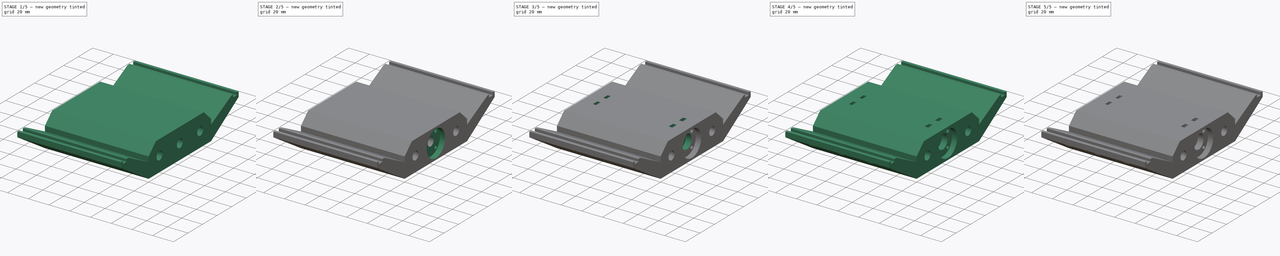
[diagram: build sequence overview — one tinted view per stage of 5, left to right]
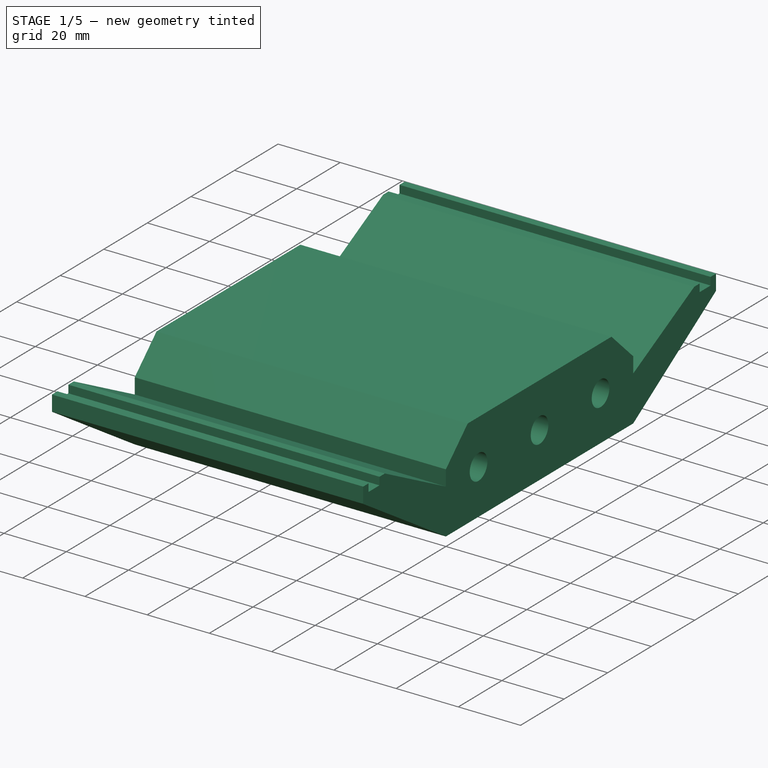
[diagram: stage 1 of 5 — iso view after this stage's code; geometry added in this stage tinted green]
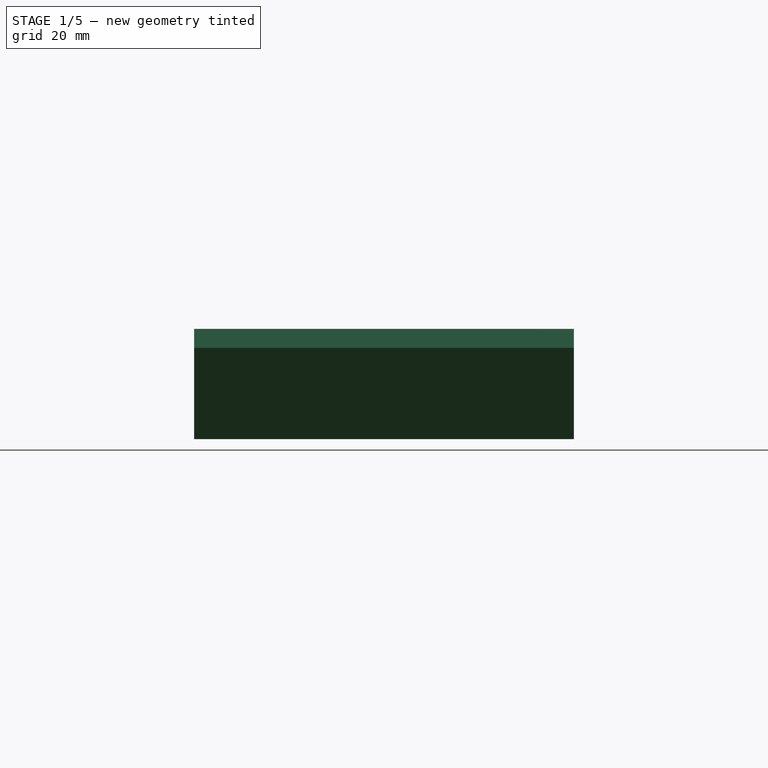
[diagram: stage 1 of 5 — front view after this stage's code; geometry added in this stage tinted green]
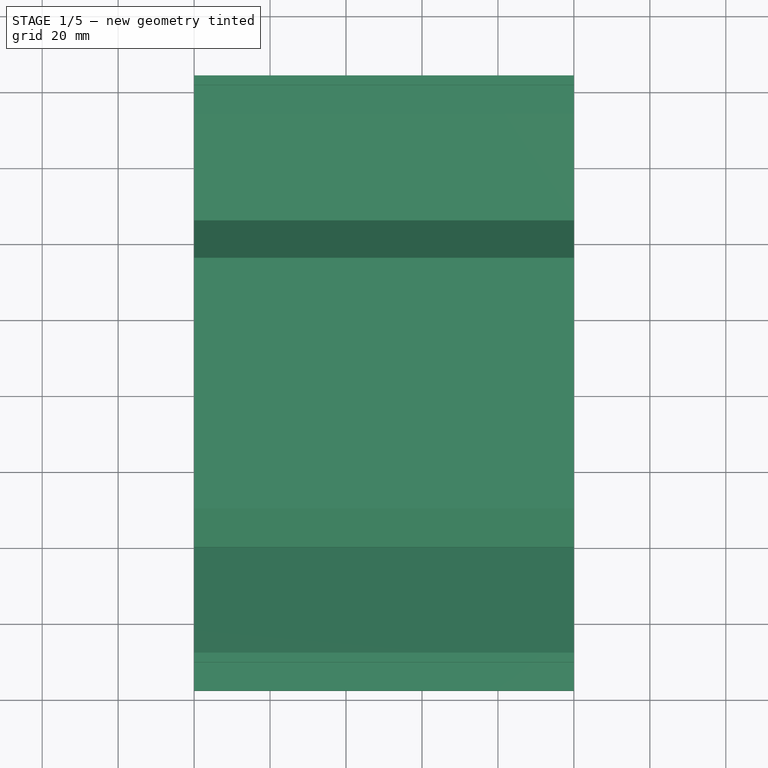
[diagram: stage 1 of 5 — top view after this stage's code; geometry added in this stage tinted green]
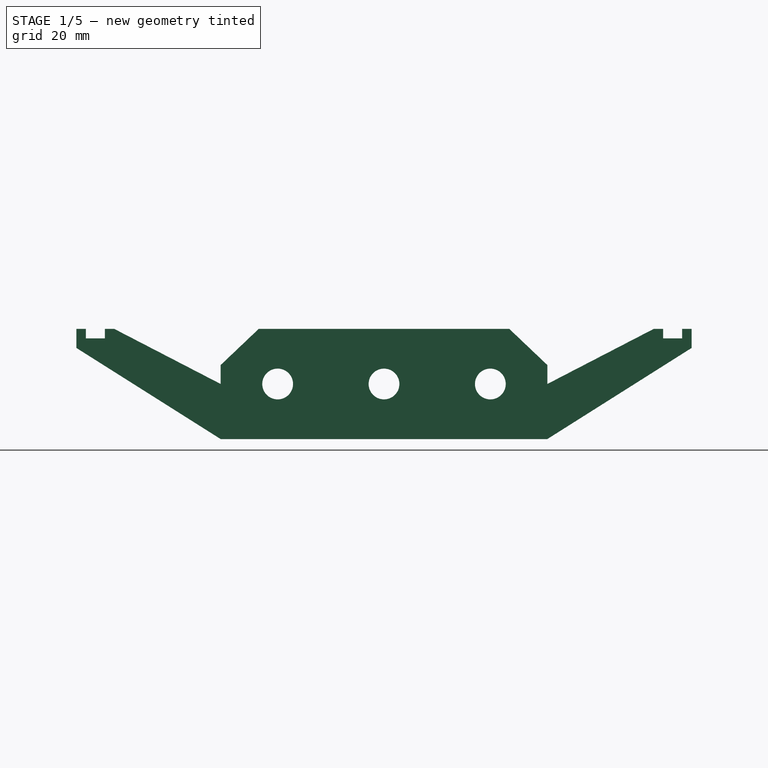
[diagram: stage 1 of 5 — right view after this stage's code; geometry added in this stage tinted green]
FCSTD DOCUMENT  (FreeCAD 0.18R16146 (Git))
Label: x-carriage-base
License: All rights reserved
LicenseURL: http://en.wikipedia.org/wiki/All_rights_reserved
objects: Sketcher::SketchObject×15, PartDesign::Pocket×14, PartDesign::Body×3, PartDesign::FeatureBase×2, PartDesign::Pad×1
note: 50 computed .brp shape members not serialized (recipe doc carries the construction recipe); baked Part::Feature solids carry a one-line shape summary decoded from their .brp

FEATURE [Sketcher::SketchObject] Sketch007
  AttachmentOffset = pos=(0,0,100) rot=(0,0,1;0rad)
  MapMode = 5
  Placement = pos=(100,-2.22e-14,2.22e-14) rot=(0.57735,0.57735,0.57735;2.0944rad)
  Support = -> [YZ_Plane]
  sketch-geometry (1):
    g0: Circle CenterX=-17 CenterY=-5 CenterZ=0 NormalX=0 NormalY=0 NormalZ=1 AngleXU=0 Radius=6.75
  constraints (3):
    c: Diameter(g0) = 13.5
    c: DistanceX(g0,g-1) = 17
    c: DistanceY(g0,g-1) = 5
FEATURE [Sketcher::SketchObject] Sketch006
  MapMode = 5
  Placement = pos=(0,0,0) rot=(0.57735,0.57735,0.57735;2.0944rad)
  Support = -> [YZ_Plane]
  sketch-geometry (1):
    g0: Circle CenterX=-17 CenterY=-5 CenterZ=0 NormalX=0 NormalY=0 NormalZ=1 AngleXU=0 Radius=6.75
  constraints (3):
    c: Diameter(g0) = 13.5
    c: DistanceX(g0,g-1) = 17
    c: DistanceY(g0,g-1) = 5
FEATURE [Sketcher::SketchObject] Sketch004
  AttachmentOffset = pos=(0,0,100) rot=(0,0,1;0rad)
  MapMode = 5
  Placement = pos=(100,-2.22e-14,2.22e-14) rot=(0.57735,0.57735,0.57735;2.0944rad)
  Support = -> [YZ_Plane]
  sketch-geometry (1):
    g0: Circle CenterX=-17 CenterY=-5 CenterZ=0 NormalX=0 NormalY=0 NormalZ=1 AngleXU=0 Radius=12.75
  constraints (3):
    c: DistanceX(g0,g-1) = 17
    c: DistanceY(g0,g-1) = 5
    c: Diameter(g0) = 25.5
FEATURE [Sketcher::SketchObject] Sketch009
  AttachmentOffset = pos=(0,0,88.25) rot=(0,0,1;0rad)
  MapMode = 5
  Placement = pos=(88.25,-1.96e-14,1.96e-14) rot=(0.57735,0.57735,0.57735;2.0944rad)
  Support = -> [YZ_Plane]
  sketch-geometry (33):
    g0: LineSegment StartX=-21.04 StartY=0.321088 StartZ=0 EndX=-21.04 EndY=3.82109 EndZ=0
    g1: LineSegment StartX=-27.1021 StartY=3.82109 StartZ=0 EndX=-27.1021 EndY=0.321088 EndZ=0
    g2: LineSegment StartX=-27.1021 StartY=0.321088 StartZ=0 EndX=-24.0711 EndY=-1.42891 EndZ=0
    g3: LineSegment StartX=-24.0711 StartY=-1.42891 StartZ=0 EndX=-21.04 EndY=0.321088 EndZ=0
    g4: Circle [constr] CenterX=-24.0711 CenterY=2.07109 CenterZ=0 NormalX=0 NormalY=0 NormalZ=1 AngleXU=0 Radius=3.5
    g5: LineSegment StartX=-6.89786 StartY=0.321088 StartZ=0 EndX=-6.89786 EndY=3.82109 EndZ=0
    g6: LineSegment StartX=-12.96 StartY=3.82109 StartZ=0 EndX=-12.96 EndY=0.321088 EndZ=0
    g7: LineSegment StartX=-12.96 StartY=0.321088 StartZ=0 EndX=-9.92895 EndY=-1.42891 EndZ=0
    g8: LineSegment StartX=-9.92895 StartY=-1.42891 StartZ=0 EndX=-6.89786 EndY=0.321088 EndZ=0
    g9: Circle [constr] CenterX=-9.92895 CenterY=2.07109 CenterZ=0 NormalX=0 NormalY=0 NormalZ=1 AngleXU=0 Radius=3.5
    g10: LineSegment StartX=-21.04 StartY=-13.8211 StartZ=0 EndX=-21.04 EndY=-10.3211 EndZ=0
    g11: LineSegment StartX=-21.04 StartY=-10.3211 StartZ=0 EndX=-24.0711 EndY=-8.57108 EndZ=0
    g12: LineSegment StartX=-24.0711 StartY=-8.57108 StartZ=0 EndX=-27.1021 EndY=-10.3211 EndZ=0
    g13: LineSegment StartX=-27.1021 StartY=-10.3211 StartZ=0 EndX=-27.1021 EndY=-13.8211 EndZ=0
    g14: Circle [constr] CenterX=-24.0711 CenterY=-12.0711 CenterZ=0 NormalX=0 NormalY=0 NormalZ=1 AngleXU=0 Radius=3.5
    g15: LineSegment StartX=-6.89786 StartY=-13.8211 StartZ=0 EndX=-6.89786 EndY=-10.3211 EndZ=0
    g16: LineSegment StartX=-6.89786 StartY=-10.3211 StartZ=0 EndX=-9.92895 EndY=-8.57108 EndZ=0
    g17: LineSegment StartX=-9.92895 StartY=-8.57108 StartZ=0 EndX=-12.96 EndY=-10.3211 EndZ=0
    g18: LineSegment StartX=-12.96 StartY=-10.3211 StartZ=0 EndX=-12.96 EndY=-13.8211 EndZ=0
    g19: Circle [constr] CenterX=-9.92895 CenterY=-12.0711 CenterZ=0 NormalX=0 NormalY=0 NormalZ=1 AngleXU=0 Radius=3.5
    g20: GeomPoint X=-17 Y=-5 Z=0
    g21: LineSegment StartX=-27.1021 StartY=3.82109 StartZ=0 EndX=-27.1021 EndY=9.82109 EndZ=0
    g22: LineSegment StartX=-27.1021 StartY=9.82109 StartZ=0 EndX=-21.04 EndY=9.82109 EndZ=0
    g23: LineSegment StartX=-21.04 StartY=9.82109 StartZ=0 EndX=-21.04 EndY=3.82109 EndZ=0
    g24: LineSegment StartX=-12.96 StartY=3.82109 StartZ=0 EndX=-12.96 EndY=9.82109 EndZ=0
    g25: LineSegment StartX=-6.89786 StartY=3.82109 StartZ=0 EndX=-6.89786 EndY=9.82109 EndZ=0
    g26: LineSegment StartX=-12.96 StartY=9.82109 StartZ=0 EndX=-6.89786 EndY=9.82109 EndZ=0
    g27: LineSegment StartX=-27.1021 StartY=-13.8211 StartZ=0 EndX=-27.1021 EndY=-19.8211 EndZ=0
    g28: LineSegment StartX=-27.1021 StartY=-19.8211 StartZ=0 EndX=-21.04 EndY=-19.8211 EndZ=0
    g29: LineSegment StartX=-21.04 StartY=-19.8211 StartZ=0 EndX=-21.04 EndY=-13.8211 EndZ=0
    g30: LineSegment StartX=-12.96 StartY=-13.8211 StartZ=0 EndX=-12.96 EndY=-19.8211 EndZ=0
    g31: LineSegment StartX=-6.89786 StartY=-13.8211 StartZ=0 EndX=-6.89786 EndY=-19.8211 EndZ=0
    g32: LineSegment StartX=-12.96 StartY=-19.8211 StartZ=0 EndX=-6.89786 EndY=-19.8211 EndZ=0
  constraints (98):
    c: Coincident(g1,g2)
    c: Coincident(g2,g3)
    c: Coincident(g3,g0)
    c: Equal(g0,g1)
    c: Equal(g0,g2)
    c: Equal(g0,g3)
    c: PointOnObject(g0,g4)
    c: PointOnObject(g1,g4)
    c: PointOnObject(g1,g4)
    c: PointOnObject(g2,g4)
    c: PointOnObject(g3,g4)
    c: Coincident(g6,g7)
    c: Coincident(g7,g8)
    c: Coincident(g8,g5)
    c: Equal(g5,g6)
    c: Equal(g5,g7)
    c: Equal(g5,g8)
    c: PointOnObject(g5,g9)
    c: PointOnObject(g6,g9)
    c: PointOnObject(g6,g9)
    c: PointOnObject(g7,g9)
    c: PointOnObject(g8,g9)
    c: Coincident(g10,g11)
    c: Coincident(g11,g12)
    c: Coincident(g12,g13)
    c: Equal(g10,g11)
    c: Equal(g10,g12)
    c: Equal(g10,g13)
    c: PointOnObject(g10,g14)
    c: PointOnObject(g11,g14)
    c: PointOnObject(g12,g14)
    c: PointOnObject(g13,g14)
    c: PointOnObject(g10,g14)
    c: Coincident(g15,g16)
    c: Coincident(g16,g17)
    c: Coincident(g17,g18)
    c: Equal(g15,g16)
    c: Equal(g15,g17)
    c: Equal(g15,g18)
    c: PointOnObject(g15,g19)
    c: PointOnObject(g16,g19)
    c: PointOnObject(g17,g19)
    c: PointOnObject(g18,g19)
    c: PointOnObject(g15,g19)
    c: DistanceY(g9,g4) = 0
    c: DistanceY(g19,g14) = 0
    c: DistanceX(g14,g4) = 0
    c: DistanceX(g9,g19) = 0
    c: Distance(g4,g19) = 20
    c: Vertical(g1)
    c: Vertical(g6)
    c: Vertical(g18)
    c: DistanceX(g20,g-1) = 17
    c: DistanceY(g20,g-1) = 5
    c: Distance(g9,g20) = 10
    c: DistanceY(g1,g1) = 3.5
    c: Equal(g6,g1)
    c: Equal(g13,g1)
    c: Equal(g18,g1)
    c: Distance(g20,g14) = 10
    c: DistanceX(g4,g9) = 14.1421
    c: Vertical(g13)
    c: Vertical(g21)
    c: Coincident(g22,g21)
    c: Horizontal(g22)
    c: Coincident(g23,g22)
    c: Coincident(g23,g0)
    c: Vertical(g23)
    c: Vertical(g24)
    c: Coincident(g25,g5)
    c: Vertical(g25)
    c: Coincident(g26,g24)
    c: Coincident(g26,g25)
    c: Horizontal(g26)
    c: DistanceY(g24,g24) = 6
    c: DistanceY(g24,g22) = 0
    c: Vertical(g0)
    c: Coincident(g1,g21)
    c: Coincident(g6,g24)
    c: Vertical(g5)
    c: Coincident(g27,g13)
    c: Vertical(g27)
    c: Coincident(g28,g27)
    c: Horizontal(g28)
    c: Coincident(g29,g28)
    c: Coincident(g29,g10)
    c: Vertical(g29)
    c: Coincident(g30,g18)
    c: Vertical(g30)
    c: Coincident(g31,g15)
    c: Vertical(g31)
    c: Coincident(g32,g30)
    c: Horizontal(g32)
    c: Coincident(g31,g32)
    c: DistanceY(g30,g30) = 6
    c: DistanceY(g29,g29) = 6
    c: Vertical(g15)
    c: Vertical(g10)
FEATURE [Sketcher::SketchObject] Sketch019
  MapMode = 5
  Support = -> [XY_Plane]
  sketch-geometry (6):
    g0: Circle CenterX=22 CenterY=59 CenterZ=0 NormalX=0 NormalY=0 NormalZ=1 AngleXU=0 Radius=3
    g1: Circle CenterX=78 CenterY=59 CenterZ=0 NormalX=0 NormalY=0 NormalZ=1 AngleXU=0 Radius=3
    g2: Circle CenterX=22 CenterY=-93 CenterZ=0 NormalX=0 NormalY=0 NormalZ=1 AngleXU=0 Radius=3
    g3: Circle CenterX=50 CenterY=-93 CenterZ=0 NormalX=0 NormalY=0 NormalZ=1 AngleXU=0 Radius=3
    g4: Circle CenterX=78 CenterY=-93 CenterZ=0 NormalX=0 NormalY=0 NormalZ=1 AngleXU=0 Radius=3
    g5: Circle CenterX=50 CenterY=59 CenterZ=0 NormalX=0 NormalY=0 NormalZ=1 AngleXU=0 Radius=3
  constraints (18):
    c: DistanceY(g0,g1) = 0
    c: DistanceX(g0,g1) = 56
    c: Diameter(g0) = 6
    c: Equal(g1,g0)
    c: DistanceX(g-1,g0) = 22
    c: DistanceY(g-1,g0) = 59
    c: DistanceY(g4,g3) = 0
    c: DistanceY(g3,g2) = 0
    c: DistanceX(g2,g3) = 28
    c: DistanceX(g3,g4) = 28
    c: Diameter(g2) = 6
    c: Equal(g3,g2)
    c: Equal(g4,g2)
    c: DistanceX(g-1,g2) = 22
    c: DistanceY(g2,g-1) = 93
    c: Equal(g0,g5)
    c: DistanceY(g0,g5) = 0
    c: DistanceX(g0,g5) = 28
FEATURE [Sketcher::SketchObject] Sketch003
  AttachmentOffset = pos=(0,0,10.5) rot=(0,0,1;0rad)
  MapMode = 5
  Placement = pos=(10.5,-2.3e-15,2.3e-15) rot=(0.57735,0.57735,0.57735;2.0944rad)
  Support = -> [YZ_Plane]
  sketch-geometry (1):
    g0: Circle CenterX=-17 CenterY=-5 CenterZ=0 NormalX=0 NormalY=0 NormalZ=1 AngleXU=0 Radius=12.75
  constraints (3):
    c: DistanceX(g0,g-1) = 17
    c: DistanceY(g0,g-1) = 5
    c: Diameter(g0) = 25.5
FEATURE [Sketcher::SketchObject] Sketch005
  AttachmentOffset = pos=(-17,-5,0) rot=(0,0,1;0.785398rad)
  MapMode = 5
  Placement = pos=(-2.7e-15,-17,-5) rot=(0.678598,0.281085,0.678598;2.59356rad)
  Support = -> [YZ_Plane]
  sketch-geometry (5):
    g0: Circle CenterX=-10 CenterY=0 CenterZ=0 NormalX=0 NormalY=0 NormalZ=1 AngleXU=0 Radius=1.7
    g1: Circle CenterX=10 CenterY=0 CenterZ=0 NormalX=0 NormalY=0 NormalZ=1 AngleXU=0 Radius=1.7
    g2: Circle CenterX=0 CenterY=-10 CenterZ=0 NormalX=0 NormalY=0 NormalZ=1 AngleXU=0 Radius=1.7
    g3: Circle CenterX=0 CenterY=10 CenterZ=0 NormalX=0 NormalY=0 NormalZ=1 AngleXU=0 Radius=1.7
    g4: GeomPoint X=0 Y=0 Z=0
  constraints (13):
    c: DistanceX(g3,g2) = 0
    c: DistanceX(g3,g1) = 10
    c: DistanceY(g1,g0) = 0
    c: DistanceX(g0,g1) = 20
    c: DistanceY(g2,g3) = 20
    c: Diameter(g3) = 3.4
    c: Equal(g3,g0)
    c: Equal(g2,g3)
    c: Equal(g1,g3)
    c: DistanceY(g0,g3) = 10
    c: DistanceX(g3,g4) = 0
    c: DistanceY(g4,g0) = 0
    c: Coincident(g4,g-1)
FEATURE [Sketcher::SketchObject] Sketch001
  AttachmentOffset = pos=(0,0,5) rot=(0,0,1;0rad)
  MapMode = 5
  Placement = pos=(5,-1.1e-15,1.1e-15) rot=(0.57735,0.57735,0.57735;2.0944rad)
  Support = -> [YZ_Plane]
  sketch-geometry (2):
    g0: Circle CenterX=-45 CenterY=-5 CenterZ=0 NormalX=0 NormalY=0 NormalZ=1 AngleXU=0 Radius=7.55
    g1: Circle CenterX=11 CenterY=-5 CenterZ=0 NormalX=0 NormalY=0 NormalZ=1 AngleXU=0 Radius=7.55
  constraints (6):
    c: Diameter(g0) = 15.1
    c: Equal(g1,g0)
    c: DistanceY(g0,g1) = 0
    c: DistanceY(g1,g-1) = 5
    c: DistanceX(g0,g1) = 56
    c: DistanceX(g-1,g1) = 11
FEATURE [Sketcher::SketchObject] Sketch008
  AttachmentOffset = pos=(0,0,11.75) rot=(0,0,1;0rad)
  MapMode = 5
  Placement = pos=(11.75,-2.6e-15,2.6e-15) rot=(0.57735,0.57735,0.57735;2.0944rad)
  Support = -> [YZ_Plane]
  sketch-geometry (33):
    g0: LineSegment StartX=-21.04 StartY=0.321088 StartZ=0 EndX=-21.04 EndY=3.82109 EndZ=0
    g1: LineSegment StartX=-27.1021 StartY=3.82109 StartZ=0 EndX=-27.1021 EndY=0.321088 EndZ=0
    g2: LineSegment StartX=-27.1021 StartY=0.321088 StartZ=0 EndX=-24.0711 EndY=-1.42891 EndZ=0
    g3: LineSegment StartX=-24.0711 StartY=-1.42891 StartZ=0 EndX=-21.04 EndY=0.321088 EndZ=0
    g4: Circle [constr] CenterX=-24.0711 CenterY=2.07109 CenterZ=0 NormalX=0 NormalY=0 NormalZ=1 AngleXU=0 Radius=3.5
    g5: LineSegment StartX=-6.89786 StartY=0.321088 StartZ=0 EndX=-6.89786 EndY=3.82109 EndZ=0
    g6: LineSegment StartX=-12.96 StartY=3.82109 StartZ=0 EndX=-12.96 EndY=0.321088 EndZ=0
    g7: LineSegment StartX=-12.96 StartY=0.321088 StartZ=0 EndX=-9.92895 EndY=-1.42891 EndZ=0
    g8: LineSegment StartX=-9.92895 StartY=-1.42891 StartZ=0 EndX=-6.89786 EndY=0.321088 EndZ=0
    g9: Circle [constr] CenterX=-9.92895 CenterY=2.07109 CenterZ=0 NormalX=0 NormalY=0 NormalZ=1 AngleXU=0 Radius=3.5
    g10: LineSegment StartX=-21.04 StartY=-13.8211 StartZ=0 EndX=-21.04 EndY=-10.3211 EndZ=0
    g11: LineSegment StartX=-21.04 StartY=-10.3211 StartZ=0 EndX=-24.0711 EndY=-8.57108 EndZ=0
    g12: LineSegment StartX=-24.0711 StartY=-8.57108 StartZ=0 EndX=-27.1021 EndY=-10.3211 EndZ=0
    g13: LineSegment StartX=-27.1021 StartY=-10.3211 StartZ=0 EndX=-27.1021 EndY=-13.8211 EndZ=0
    g14: Circle [constr] CenterX=-24.0711 CenterY=-12.0711 CenterZ=0 NormalX=0 NormalY=0 NormalZ=1 AngleXU=0 Radius=3.5
    g15: LineSegment StartX=-6.89786 StartY=-13.8211 StartZ=0 EndX=-6.89786 EndY=-10.3211 EndZ=0
    g16: LineSegment StartX=-6.89786 StartY=-10.3211 StartZ=0 EndX=-9.92895 EndY=-8.57108 EndZ=0
    g17: LineSegment StartX=-9.92895 StartY=-8.57108 StartZ=0 EndX=-12.96 EndY=-10.3211 EndZ=0
    g18: LineSegment StartX=-12.96 StartY=-10.3211 StartZ=0 EndX=-12.96 EndY=-13.8211 EndZ=0
    g19: Circle [constr] CenterX=-9.92895 CenterY=-12.0711 CenterZ=0 NormalX=0 NormalY=0 NormalZ=1 AngleXU=0 Radius=3.5
    g20: GeomPoint X=-17 Y=-5 Z=0
    g21: LineSegment StartX=-27.1021 StartY=3.82109 StartZ=0 EndX=-27.1021 EndY=9.82109 EndZ=0
    g22: LineSegment StartX=-27.1021 StartY=9.82109 StartZ=0 EndX=-21.04 EndY=9.82109 EndZ=0
    g23: LineSegment StartX=-21.04 StartY=9.82109 StartZ=0 EndX=-21.04 EndY=3.82109 EndZ=0
    g24: LineSegment StartX=-12.96 StartY=3.82109 StartZ=0 EndX=-12.96 EndY=9.82109 EndZ=0
    g25: LineSegment StartX=-6.89786 StartY=3.82109 StartZ=0 EndX=-6.89786 EndY=9.82109 EndZ=0
    g26: LineSegment StartX=-12.96 StartY=9.82109 StartZ=0 EndX=-6.89786 EndY=9.82109 EndZ=0
    g27: LineSegment StartX=-27.1021 StartY=-13.8211 StartZ=0 EndX=-27.1021 EndY=-19.8211 EndZ=0
    g28: LineSegment StartX=-27.1021 StartY=-19.8211 StartZ=0 EndX=-21.04 EndY=-19.8211 EndZ=0
    g29: LineSegment StartX=-21.04 StartY=-19.8211 StartZ=0 EndX=-21.04 EndY=-13.8211 EndZ=0
    g30: LineSegment StartX=-12.96 StartY=-13.8211 StartZ=0 EndX=-12.96 EndY=-19.8211 EndZ=0
    g31: LineSegment StartX=-6.89786 StartY=-13.8211 StartZ=0 EndX=-6.89786 EndY=-19.8211 EndZ=0
    g32: LineSegment StartX=-12.96 StartY=-19.8211 StartZ=0 EndX=-6.89786 EndY=-19.8211 EndZ=0
  constraints (98):
    c: Coincident(g1,g2)
    c: Coincident(g2,g3)
    c: Coincident(g3,g0)
    c: Equal(g0,g1)
    c: Equal(g0,g2)
    c: Equal(g0,g3)
    c: PointOnObject(g0,g4)
    c: PointOnObject(g1,g4)
    c: PointOnObject(g1,g4)
    c: PointOnObject(g2,g4)
    c: PointOnObject(g3,g4)
    c: Coincident(g6,g7)
    c: Coincident(g7,g8)
    c: Coincident(g8,g5)
    c: Equal(g5,g6)
    c: Equal(g5,g7)
    c: Equal(g5,g8)
    c: PointOnObject(g5,g9)
    c: PointOnObject(g6,g9)
    c: PointOnObject(g6,g9)
    c: PointOnObject(g7,g9)
    c: PointOnObject(g8,g9)
    c: Coincident(g10,g11)
    c: Coincident(g11,g12)
    c: Coincident(g12,g13)
    c: Equal(g10,g11)
    c: Equal(g10,g12)
    c: Equal(g10,g13)
    c: PointOnObject(g10,g14)
    c: PointOnObject(g11,g14)
    c: PointOnObject(g12,g14)
    c: PointOnObject(g13,g14)
    c: PointOnObject(g10,g14)
    c: Coincident(g15,g16)
    c: Coincident(g16,g17)
    c: Coincident(g17,g18)
    c: Equal(g15,g16)
    c: Equal(g15,g17)
    c: Equal(g15,g18)
    c: PointOnObject(g15,g19)
    c: PointOnObject(g16,g19)
    c: PointOnObject(g17,g19)
    c: PointOnObject(g18,g19)
    c: PointOnObject(g15,g19)
    c: DistanceY(g9,g4) = 0
    c: DistanceY(g19,g14) = 0
    c: DistanceX(g14,g4) = 0
    c: DistanceX(g9,g19) = 0
    c: Distance(g4,g19) = 20
    c: Vertical(g1)
    c: Vertical(g6)
    c: Vertical(g18)
    c: DistanceX(g20,g-1) = 17
    c: DistanceY(g20,g-1) = 5
    c: Distance(g9,g20) = 10
    c: DistanceY(g1,g1) = 3.5
    c: Equal(g6,g1)
    c: Equal(g13,g1)
    c: Equal(g18,g1)
    c: Distance(g20,g14) = 10
    c: DistanceX(g4,g9) = 14.1421
    c: Vertical(g13)
    c: Vertical(g21)
    c: Coincident(g22,g21)
    c: Horizontal(g22)
    c: Coincident(g23,g22)
    c: Coincident(g23,g0)
    c: Vertical(g23)
    c: Vertical(g24)
    c: Coincident(g25,g5)
    c: Vertical(g25)
    c: Coincident(g26,g24)
    c: Coincident(g26,g25)
    c: Horizontal(g26)
    c: DistanceY(g24,g24) = 6
    c: DistanceY(g24,g22) = 0
    c: Vertical(g0)
    c: Coincident(g1,g21)
    c: Coincident(g6,g24)
    c: Vertical(g5)
    c: Coincident(g27,g13)
    c: Vertical(g27)
    c: Coincident(g28,g27)
    c: Horizontal(g28)
    c: Coincident(g29,g28)
    c: Coincident(g29,g10)
    c: Vertical(g29)
    c: Coincident(g30,g18)
    c: Vertical(g30)
    c: Coincident(g31,g15)
    c: Vertical(g31)
    c: Coincident(g32,g30)
    c: Horizontal(g32)
    c: Coincident(g31,g32)
    c: DistanceY(g30,g30) = 6
    c: DistanceY(g29,g29) = 6
    c: Vertical(g15)
    c: Vertical(g10)
FEATURE [Sketcher::SketchObject] Sketch002
  AttachmentOffset = pos=(0,0,71) rot=(0,0,1;0rad)
  MapMode = 5
  Placement = pos=(71,-1.58e-14,1.58e-14) rot=(0.57735,0.57735,0.57735;2.0944rad)
  Support = -> [YZ_Plane]
  sketch-geometry (2):
    g0: Circle CenterX=-45 CenterY=-5 CenterZ=0 NormalX=0 NormalY=0 NormalZ=1 AngleXU=0 Radius=7.55
    g1: Circle CenterX=11 CenterY=-5 CenterZ=0 NormalX=0 NormalY=0 NormalZ=1 AngleXU=0 Radius=7.55
  constraints (6):
    c: Diameter(g0) = 15.1
    c: Equal(g1,g0)
    c: DistanceY(g0,g1) = 0
    c: DistanceY(g1,g-1) = 5
    c: DistanceX(g0,g1) = 56
    c: DistanceX(g-1,g1) = 11
FEATURE [Sketcher::SketchObject] Sketch
  MapMode = 5
  Placement = pos=(0,0,0) rot=(0.57735,0.57735,0.57735;2.0944rad)
  Support = -> [YZ_Plane]
  sketch-geometry (27):
    g0: LineSegment StartX=-50 StartY=9.5 StartZ=0 EndX=16 EndY=9.5 EndZ=0
    g1: LineSegment StartX=26 StartY=4e-16 StartZ=0 EndX=26 EndY=-5 EndZ=0
    g2: LineSegment StartX=16 StartY=-19.5 StartZ=0 EndX=-50 EndY=-19.5 EndZ=0
    g3: LineSegment StartX=-60 StartY=-5 StartZ=0 EndX=-60 EndY=0 EndZ=0
    g4: Circle CenterX=-45 CenterY=-5 CenterZ=0 NormalX=0 NormalY=0 NormalZ=1 AngleXU=0 Radius=4.05
    g5: Circle CenterX=11 CenterY=-5 CenterZ=0 NormalX=0 NormalY=0 NormalZ=1 AngleXU=0 Radius=4.05
    g6: Circle CenterX=-17 CenterY=-5 CenterZ=0 NormalX=0 NormalY=0 NormalZ=1 AngleXU=0 Radius=4.05
    g7: LineSegment StartX=-60 StartY=0 StartZ=0 EndX=-50 EndY=9.5 EndZ=0
    g8: LineSegment StartX=16 StartY=9.5 StartZ=0 EndX=26 EndY=0 EndZ=0
    g9: LineSegment StartX=26 StartY=-5 StartZ=0 EndX=54 EndY=9.5 EndZ=0
    g10: LineSegment StartX=64 StartY=4.5 StartZ=0 EndX=26 EndY=-19.5 EndZ=0
    g11: LineSegment StartX=16 StartY=-19.5 StartZ=0 EndX=26 EndY=-19.5 EndZ=0
    g12: LineSegment StartX=-60 StartY=-5 StartZ=0 EndX=-88 EndY=9.5 EndZ=0
    g13: LineSegment StartX=-60 StartY=-19.5 StartZ=0 EndX=-50 EndY=-19.5 EndZ=0
    g14: LineSegment StartX=64 StartY=9.5 StartZ=0 EndX=64 EndY=4.5 EndZ=0
    g15: LineSegment StartX=54 StartY=9.5 StartZ=0 EndX=56.5 EndY=9.5 EndZ=0
    g16: LineSegment StartX=64 StartY=9.5 StartZ=0 EndX=61.5 EndY=9.5 EndZ=0
    g17: LineSegment StartX=56.5 StartY=9.5 StartZ=0 EndX=56.5 EndY=7 EndZ=0
    g18: LineSegment StartX=61.5 StartY=9.5 StartZ=0 EndX=61.5 EndY=7 EndZ=0
    g19: LineSegment StartX=56.5 StartY=7 StartZ=0 EndX=61.5 EndY=7 EndZ=0
    g20: LineSegment StartX=-88 StartY=9.5 StartZ=0 EndX=-90.5 EndY=9.5 EndZ=0
    g21: LineSegment StartX=-90.5 StartY=9.5 StartZ=0 EndX=-90.5 EndY=7 EndZ=0
    g22: LineSegment StartX=-90.5 StartY=7 StartZ=0 EndX=-95.5 EndY=7 EndZ=0
    g23: LineSegment StartX=-95.5 StartY=7 StartZ=0 EndX=-95.5 EndY=9.5 EndZ=0
    g24: LineSegment StartX=-95.5 StartY=9.5 StartZ=0 EndX=-98 EndY=9.5 EndZ=0
    g25: LineSegment StartX=-98 StartY=9.5 StartZ=0 EndX=-98 EndY=4.5 EndZ=0
    g26: LineSegment StartX=-98 StartY=4.5 StartZ=0 EndX=-60 EndY=-19.5 EndZ=0
  constraints (81):
    c: Horizontal(g0)
    c: Horizontal(g2)
    c: Vertical(g1)
    c: Vertical(g3)
    c: DistanceY(g5,g6) = 0
    c: DistanceY(g4,g6) = 0
    c: Diameter(g4) = 8.1
    c: Equal(g4,g6)
    c: Equal(g4,g5)
    c: DistanceX(g4,g6) = 28
    c: DistanceX(g6,g5) = 28
    c: DistanceY(g6,g-1) = 5
    c: DistanceX(g6,g-1) = 17
    c: Coincident(g0,g7)
    c: Coincident(g3,g7)
    c: DistanceY(g4,g3) = 5
    c: DistanceX(g0,g4) = 5
    c: DistanceX(g0,g2) = 0
    c: DistanceX(g3,g4) = 15
    c: Coincident(g0,g8)
    c: Coincident(g1,g8)
    c: DistanceY(g5,g1) = 5
    c: DistanceX(g5,g0) = 5
    c: DistanceX(g5,g2) = 5
    c: DistanceX(g5,g1) = 15
    c: DistanceY(g-1,g0) = 9.5
    c: Coincident(g11,g2)
    c: Coincident(g11,g10)
    c: Horizontal(g11)
    c: Coincident(g1,g9)
    c: DistanceY(g1,g5) = 0
    c: DistanceX(g1,g10) = 0
    c: DistanceY(g9,g12) = 0
    c: Coincident(g13,g2)
    c: Horizontal(g13)
    c: Coincident(g3,g12)
    c: DistanceX(g3,g13) = 0
    c: DistanceY(g3,g4) = 0
    c: DistanceY(g2,g4) = 14.5
    c: DistanceY(g0,g9) = 0
    c: Vertical(g14)
    c: DistanceY(g14,g14) = 5
    c: Coincident(g10,g14)
    c: Coincident(g15,g9)
    c: Horizontal(g15)
    c: Coincident(g16,g14)
    c: Horizontal(g16)
    c: Coincident(g17,g15)
    c: Vertical(g17)
    c: Coincident(g18,g16)
    c: Vertical(g18)
    c: Coincident(g19,g17)
    c: Coincident(g19,g18)
    c: Horizontal(g19)
    c: DistanceX(g15,g15) = 2.5
    c: Equal(g16,g15)
    c: DistanceX(g9,g14) = 10
    c: DistanceX(g-1,g14) = 64
    c: DistanceY(g17,g17) = 2.5
    c: DistanceY(g14,g9) = 0
    c: Coincident(g20,g12)
    c: Coincident(g21,g20)
    c: Coincident(g22,g21)
    c: Horizontal(g22)
    c: Coincident(g23,g22)
    c: Vertical(g23)
    c: Coincident(g24,g23)
    c: Coincident(g25,g24)
    c: Coincident(g26,g25)
    c: Coincident(g26,g13)
    c: Horizontal(g24)
    c: Horizontal(g20)
    c: DistanceY(g20,g23) = 0
    c: Vertical(g25)
    c: DistanceX(g24,g6) = 81
    c: Vertical(g21)
    c: DistanceY(g23,g23) = 2.5
    c: DistanceX(g24,g24) = 2.5
    c: Equal(g20,g24)
    c: DistanceX(g24,g12) = 10
    c: DistanceY(g25,g25) = 5
FEATURE [PartDesign::Pad] Pad
  Length = 100
  Length2 = 100
  Placement = pos=(0,0,0) rot=(0.57735,0.57735,0.57735;2.0944rad)
  Profile = -> Sketch
  Type = 0
FEATURE [PartDesign::Pocket] Pocket
  BaseFeature = -> Pad
  Length = 24
  Length2 = 100
  Placement = pos=(0,0,0) rot=(0.57735,0.57735,0.57735;2.0944rad)
  Profile = -> Sketch001
  Reversed = true
  Type = 0
FEATURE [PartDesign::Pocket] Pocket001
  BaseFeature = -> Pocket
  Length = 24
  Length2 = 100
  Placement = pos=(0,0,0) rot=(0.57735,0.57735,0.57735;2.0944rad)
  Profile = -> Sketch002
  Reversed = true
  Type = 0
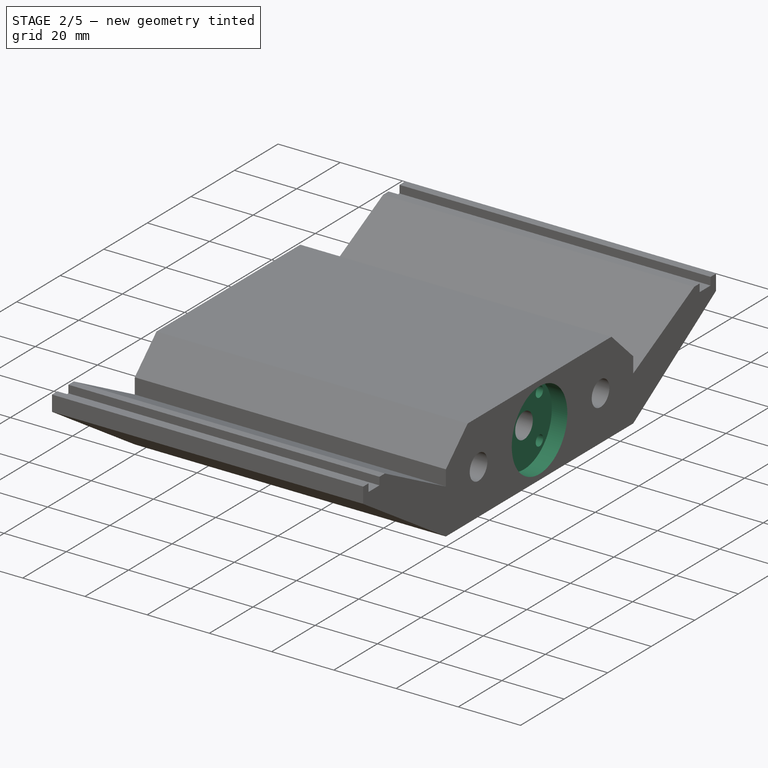
[diagram: stage 2 of 5 — iso view after this stage's code; geometry added in this stage tinted green]
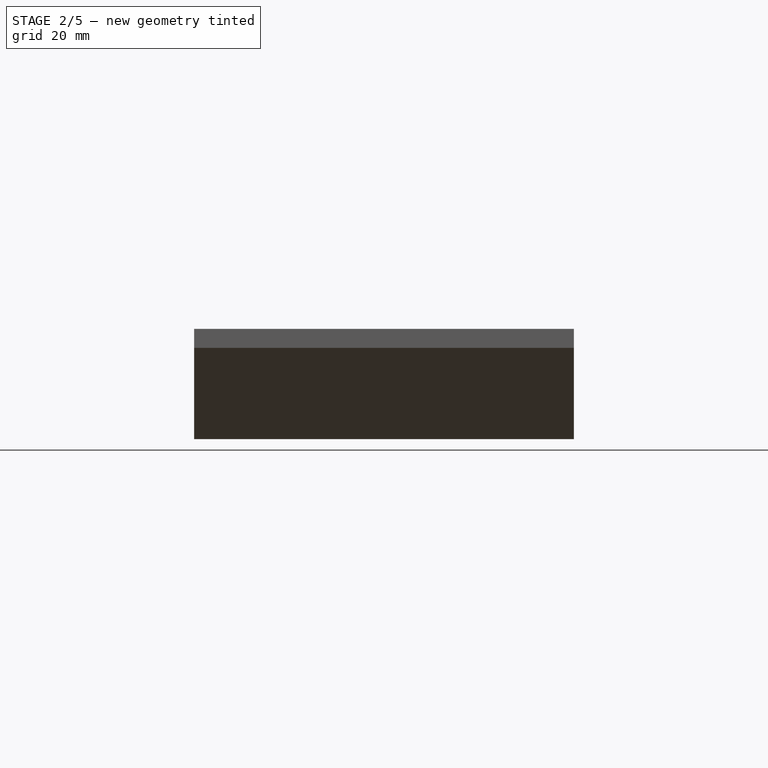
[diagram: stage 2 of 5 — front view after this stage's code; geometry added in this stage tinted green]
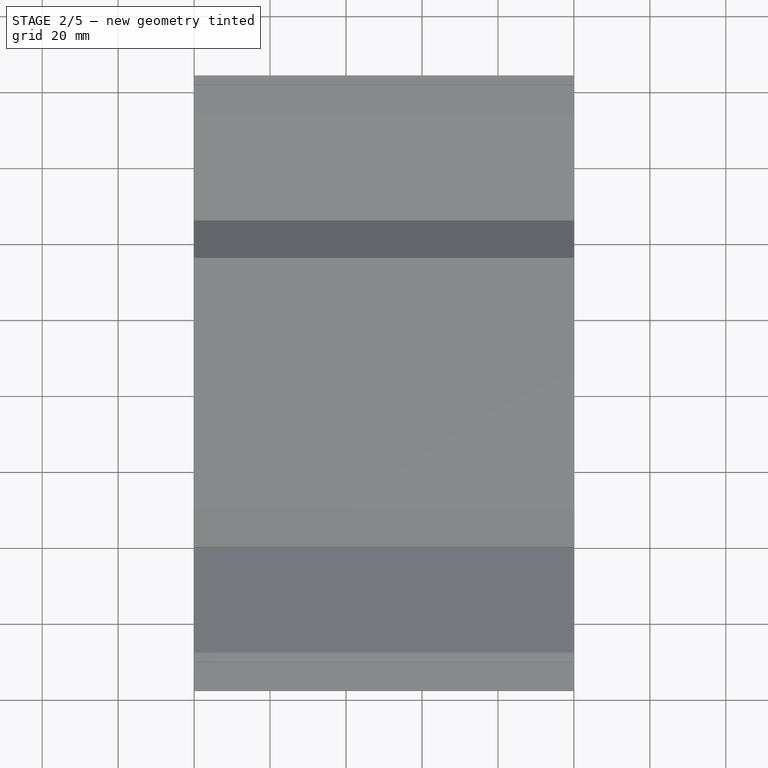
[diagram: stage 2 of 5 — top view after this stage's code; geometry added in this stage tinted green]
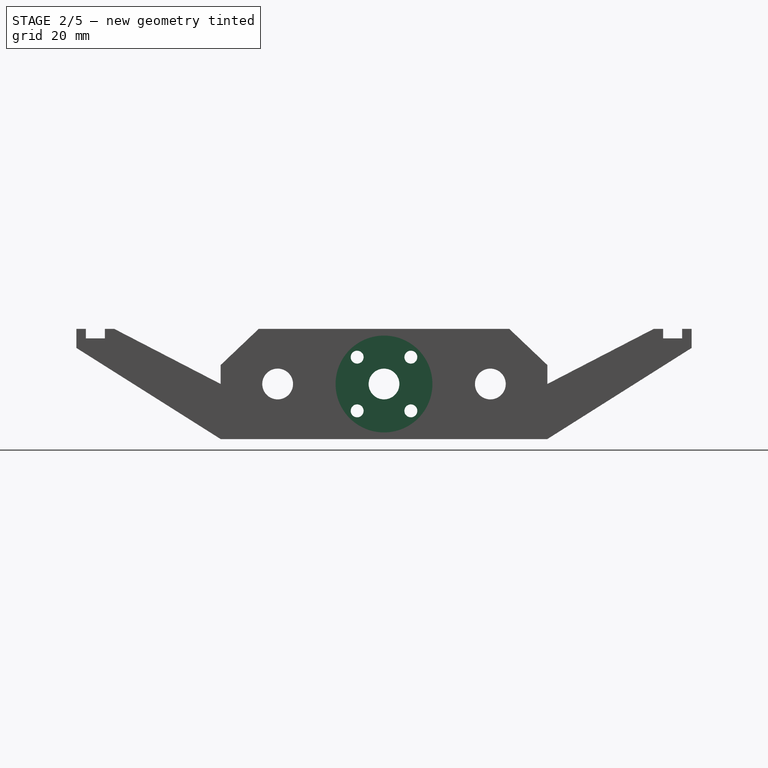
[diagram: stage 2 of 5 — right view after this stage's code; geometry added in this stage tinted green]
FEATURE [PartDesign::Pocket] Pocket002
  BaseFeature = -> Pocket001
  Length = 5
  Length2 = 100
  Placement = pos=(0,0,0) rot=(0.57735,0.57735,0.57735;2.0944rad)
  Profile = -> Sketch003
  Type = 0
FEATURE [PartDesign::Pocket] Pocket003
  BaseFeature = -> Pocket002
  Length = 5
  Length2 = 100
  Placement = pos=(0,0,0) rot=(0.57735,0.57735,0.57735;2.0944rad)
  Profile = -> Sketch004
  Type = 0
FEATURE [PartDesign::Pocket] Pocket004
  BaseFeature = -> Pocket003
  Length = 25
  Length2 = 100
  Placement = pos=(0,0,0) rot=(0.57735,0.57735,0.57735;2.0944rad)
  Profile = -> Sketch005
  Reversed = true
  Type = 1
FEATURE [PartDesign::Pocket] Pocket005
  BaseFeature = -> Pocket004
  Length = 10.5
  Length2 = 100
  Placement = pos=(0,0,0) rot=(0.57735,0.57735,0.57735;2.0944rad)
  Profile = -> Sketch006
  Reversed = true
  Type = 0
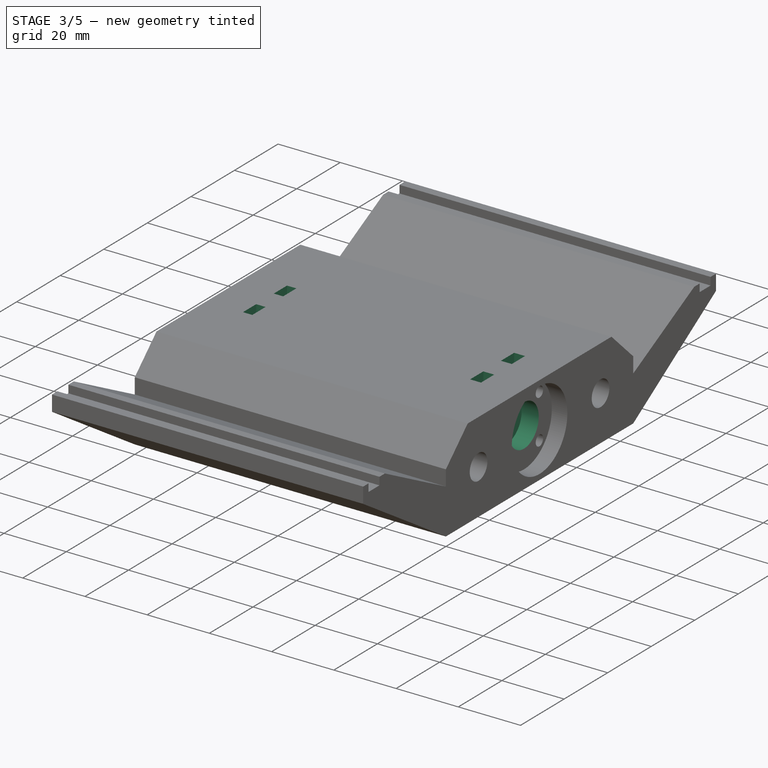
[diagram: stage 3 of 5 — iso view after this stage's code; geometry added in this stage tinted green]
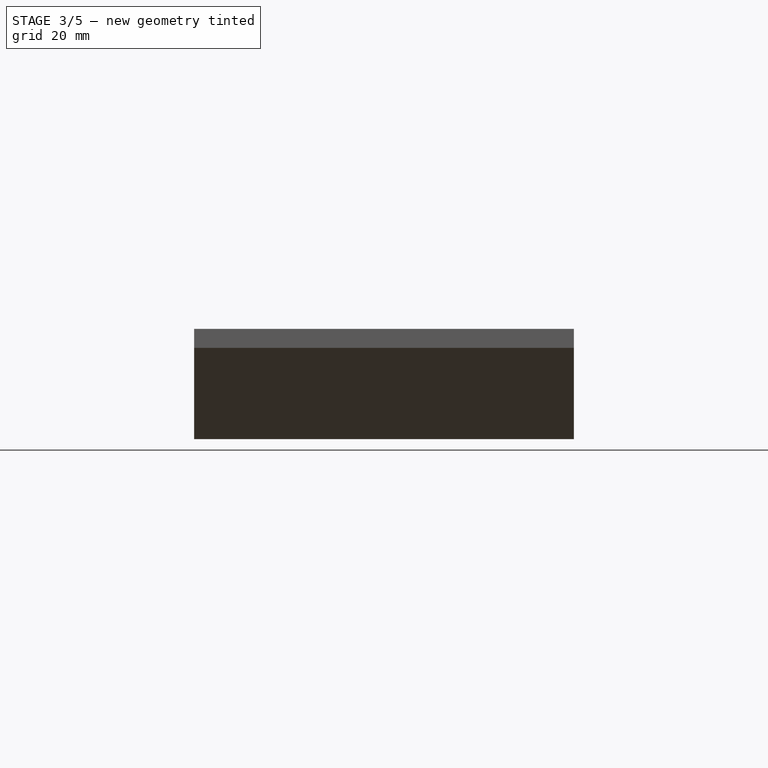
[diagram: stage 3 of 5 — front view after this stage's code; geometry added in this stage tinted green]
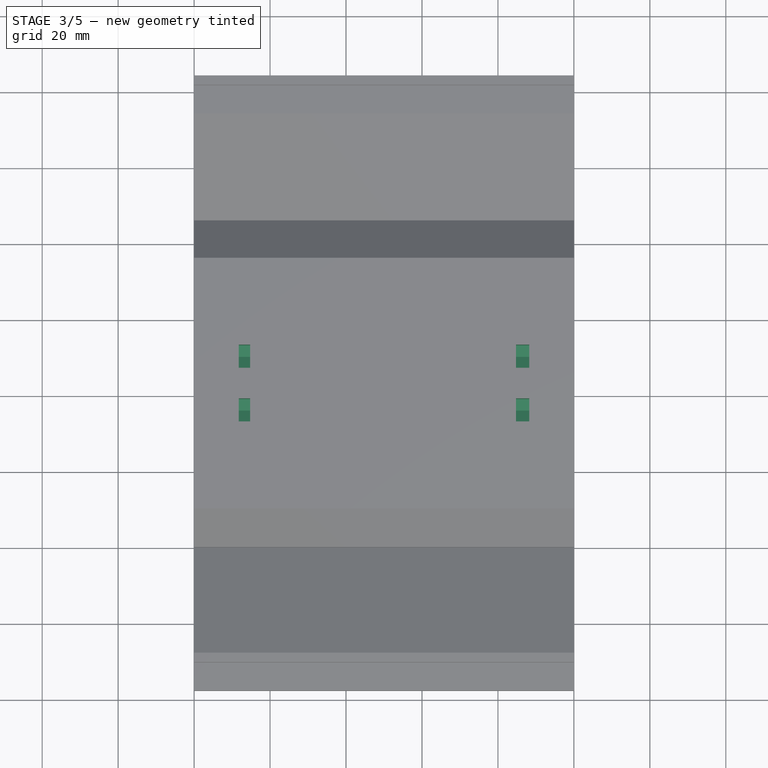
[diagram: stage 3 of 5 — top view after this stage's code; geometry added in this stage tinted green]
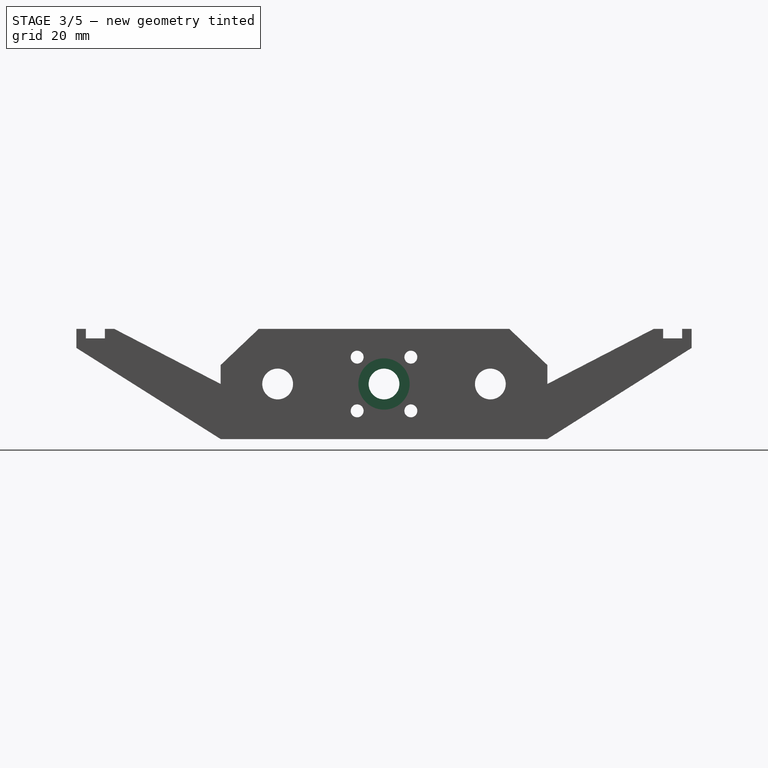
[diagram: stage 3 of 5 — right view after this stage's code; geometry added in this stage tinted green]
FEATURE [PartDesign::Pocket] Pocket006
  BaseFeature = -> Pocket005
  Length = 10.5
  Length2 = 100
  Placement = pos=(0,0,0) rot=(0.57735,0.57735,0.57735;2.0944rad)
  Profile = -> Sketch007
  Type = 0
FEATURE [Sketcher::SketchObject] Sketch017
  MapMode = 5
  Support = -> [XY_Plane]
  sketch-geometry (6):
    g0: Circle CenterX=22 CenterY=59 CenterZ=0 NormalX=0 NormalY=0 NormalZ=1 AngleXU=0 Radius=1.7
    g1: Circle CenterX=78 CenterY=59 CenterZ=0 NormalX=0 NormalY=0 NormalZ=1 AngleXU=0 Radius=1.7
    g2: Circle CenterX=22 CenterY=-93 CenterZ=0 NormalX=0 NormalY=0 NormalZ=1 AngleXU=0 Radius=1.7
    g3: Circle CenterX=50 CenterY=-93 CenterZ=0 NormalX=0 NormalY=0 NormalZ=1 AngleXU=0 Radius=1.7
    g4: Circle CenterX=78 CenterY=-93 CenterZ=0 NormalX=0 NormalY=0 NormalZ=1 AngleXU=0 Radius=1.7
    g5: Circle CenterX=50 CenterY=59 CenterZ=0 NormalX=0 NormalY=0 NormalZ=1 AngleXU=0 Radius=1.7
  constraints (18):
    c: Diameter(g0) = 3.4
    c: DistanceX(g0,g1) = 56
    c: DistanceX(g-1,g0) = 22
    c: DistanceY(g-1,g0) = 59
    c: Equal(g2,g0)
    c: Equal(g3,g2)
    c: Equal(g4,g3)
    c: DistanceY(g4,g3) = 0
    c: DistanceY(g3,g2) = 0
    c: DistanceX(g0,g2) = 0
    c: DistanceX(g4,g1) = 0
    c: DistanceY(g2,g0) = 152
    c: Equal(g1,g0)
    c: DistanceY(g1,g0) = 0
    c: DistanceX(g2,g3) = 28
    c: Equal(g0,g5)
    c: DistanceY(g0,g5) = 0
    c: DistanceX(g0,g5) = 28
FEATURE [PartDesign::Pocket] Pocket007
  BaseFeature = -> Pocket006
  Length = 3
  Length2 = 100
  Placement = pos=(0,0,0) rot=(0.57735,0.57735,0.57735;2.0944rad)
  Profile = -> Sketch008
  Reversed = true
  Type = 0
FEATURE [PartDesign::Pocket] Pocket008
  BaseFeature = -> Pocket007
  Length = 3.5
  Length2 = 100
  Placement = pos=(0,0,0) rot=(0.57735,0.57735,0.57735;2.0944rad)
  Profile = -> Sketch009
  Type = 0
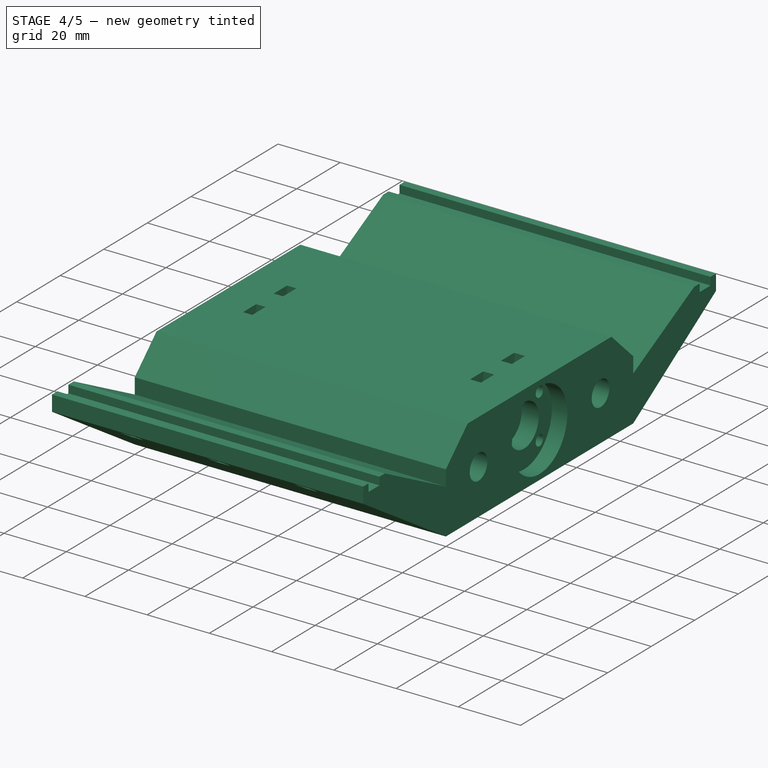
[diagram: stage 4 of 5 — iso view after this stage's code; geometry added in this stage tinted green]
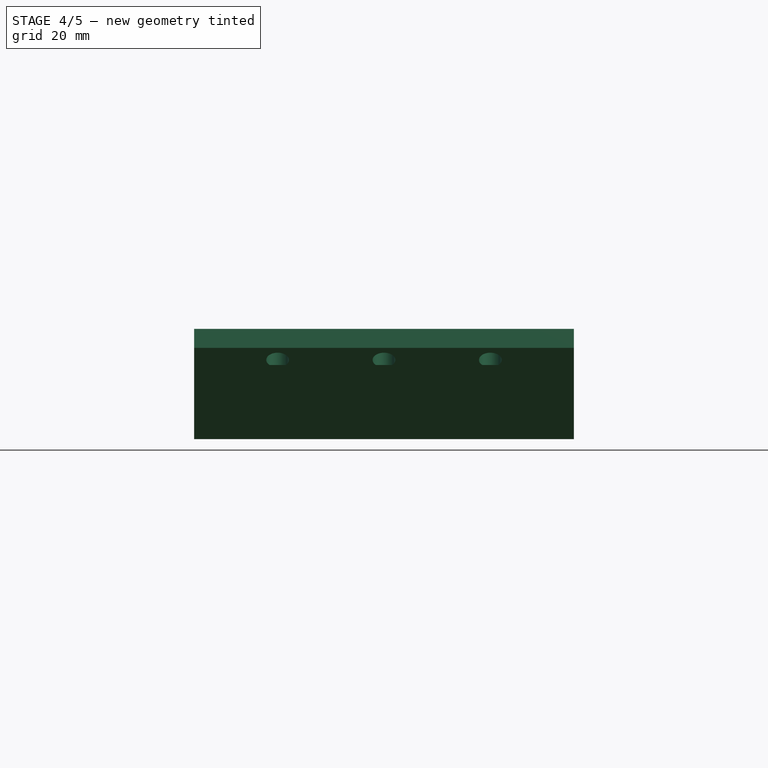
[diagram: stage 4 of 5 — front view after this stage's code; geometry added in this stage tinted green]
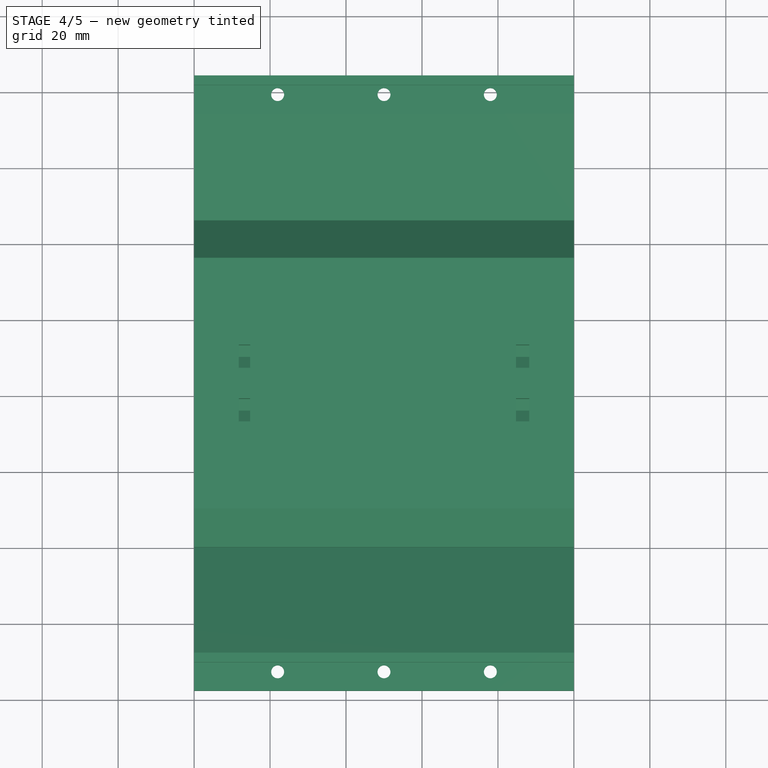
[diagram: stage 4 of 5 — top view after this stage's code; geometry added in this stage tinted green]
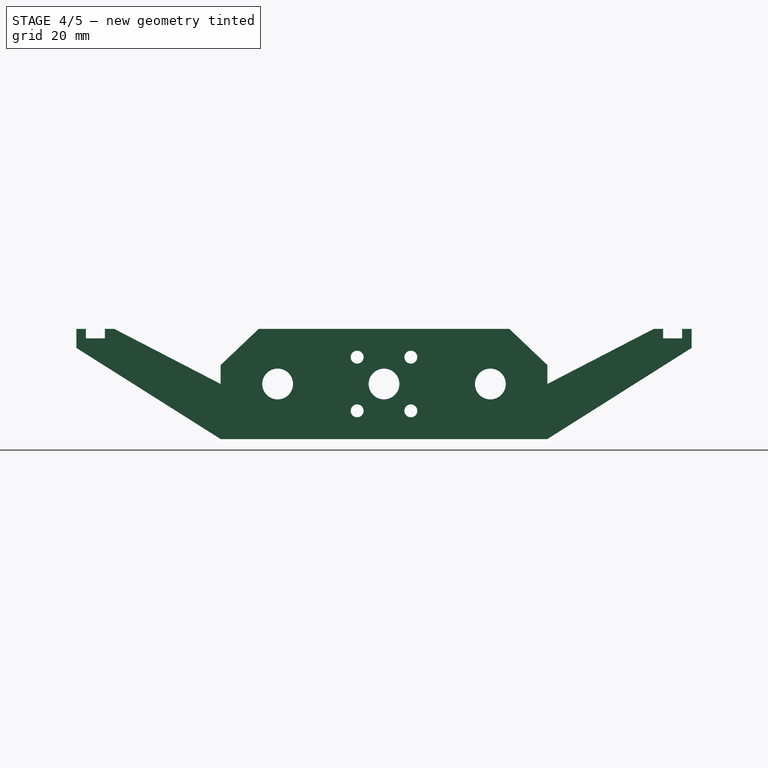
[diagram: stage 4 of 5 — right view after this stage's code; geometry added in this stage tinted green]
FEATURE [PartDesign::Pocket] Pocket011
  BaseFeature = -> Pocket008
  Length = 17
  Length2 = 100
  Placement = pos=(0,0,0) rot=(0.57735,0.57735,0.57735;2.0944rad)
  Profile = -> Sketch017
  Reversed = true
  Type = 0
FEATURE [PartDesign::Pocket] Pocket013
  BaseFeature = -> Pocket011
  Length = 5
  Length2 = 100
  Placement = pos=(0,0,0) rot=(0.57735,0.57735,0.57735;2.0944rad)
  Profile = -> Sketch019
  Reversed = true
  Type = 0
FEATURE [Sketcher::SketchObject] Sketch024
  MapMode = 5
  Placement = pos=(0,0,0) rot=(0.57735,0.57735,0.57735;2.0944rad)
  Support = -> [YZ_Plane001]
  sketch-geometry (4):
    g0: LineSegment StartX=-60 StartY=10 StartZ=0 EndX=26 EndY=10 EndZ=0
    g1: LineSegment StartX=26 StartY=10 StartZ=0 EndX=26 EndY=-5 EndZ=0
    g2: LineSegment StartX=26 StartY=-5 StartZ=0 EndX=-60 EndY=-5 EndZ=0
    g3: LineSegment StartX=-60 StartY=-5 StartZ=0 EndX=-60 EndY=10 EndZ=0
  constraints (12):
    c: Coincident(g0,g1)
    c: Coincident(g1,g2)
    c: Coincident(g2,g3)
    c: Coincident(g3,g0)
    c: Horizontal(g0)
    c: Horizontal(g2)
    c: Vertical(g1)
    c: Vertical(g3)
    c: DistanceY(g1,g-1) = 5
    c: DistanceX(g0,g-1) = 60
    c: DistanceX(g-1,g0) = 26
    c: DistanceY(g1,g1) = 15
FEATURE [Sketcher::SketchObject] Sketch025
  MapMode = 5
  Placement = pos=(0,0,0) rot=(0.57735,0.57735,0.57735;2.0944rad)
  Support = -> [YZ_Plane002]
  sketch-geometry (8):
    g0: LineSegment StartX=-100 StartY=12 StartZ=0 EndX=-60 EndY=12 EndZ=0
    g1: LineSegment StartX=-60 StartY=12 StartZ=0 EndX=-60 EndY=-5 EndZ=0
    g2: LineSegment StartX=-60 StartY=-5 StartZ=0 EndX=26 EndY=-5 EndZ=0
    g3: LineSegment StartX=26 StartY=-5 StartZ=0 EndX=26 EndY=12 EndZ=0
    g4: LineSegment StartX=26 StartY=12 StartZ=0 EndX=67 EndY=12 EndZ=0
    g5: LineSegment StartX=67 StartY=12 StartZ=0 EndX=67 EndY=-20 EndZ=0
    g6: LineSegment StartX=-100 StartY=12 StartZ=0 EndX=-100 EndY=-20 EndZ=0
    g7: LineSegment StartX=-100 StartY=-20 StartZ=0 EndX=67 EndY=-20 EndZ=0
  constraints (24):
    c: Horizontal(g0)
    c: Coincident(g1,g0)
    c: Vertical(g1)
    c: Coincident(g2,g1)
    c: Horizontal(g2)
    c: Coincident(g3,g2)
    c: Vertical(g3)
    c: Coincident(g4,g3)
    c: Horizontal(g4)
    c: Coincident(g5,g4)
    c: Vertical(g5)
    c: Coincident(g6,g0)
    c: Vertical(g6)
    c: Coincident(g7,g6)
    c: Coincident(g7,g5)
    c: Horizontal(g7)
    c: DistanceY(g1,g-1) = 5
    c: DistanceX(g0,g-1) = 60
    c: DistanceX(g-1,g3) = 26
    c: DistanceY(g0,g3) = 0
    c: DistanceX(g0,g0) = 40
    c: DistanceY(g6,g6) = 32
    c: DistanceX(g4,g4) = 41
    c: DistanceY(g-1,g0) = 12
FEATURE [Sketcher::SketchObject] Sketch026
  MapMode = 5
  Placement = pos=(0,0,0) rot=(0.57735,0.57735,0.57735;2.0944rad)
  Support = -> [YZ_Plane]
  sketch-geometry (5):
    g0: GeomPoint X=-17 Y=-5 Z=0
    g1: Circle CenterX=-24.071 CenterY=2.07105 CenterZ=0 NormalX=0 NormalY=0 NormalZ=1 AngleXU=0 Radius=3
    g2: Circle CenterX=-9.92891 CenterY=2.07105 CenterZ=0 NormalX=0 NormalY=0 NormalZ=1 AngleXU=0 Radius=3
    g3: Circle CenterX=-24.071 CenterY=-12.0711 CenterZ=0 NormalX=0 NormalY=0 NormalZ=1 AngleXU=0 Radius=3
    g4: Circle CenterX=-9.92891 CenterY=-12.0711 CenterZ=0 NormalX=0 NormalY=0 NormalZ=1 AngleXU=0 Radius=3
  constraints (14):
    c: DistanceY(g0,g-1) = 5
    c: DistanceX(g0,g-1) = 17
    c: Diameter(g1) = 6
    c: Equal(g3,g1)
    c: Equal(g2,g1)
    c: Equal(g4,g1)
    c: DistanceX(g3,g1) = 0
    c: DistanceX(g2,g4) = 0
    c: DistanceY(g2,g1) = 0
    c: DistanceY(g4,g3) = 0
    c: DistanceX(g1,g2) = 14.1421
    c: DistanceY(g3,g1) = 14.1421
    c: DistanceY(g0,g1) = 7.07105
    c: DistanceX(g1,g0) = 7.07105
FEATURE [PartDesign::Pocket] Pocket022
  BaseFeature = -> Pocket013
  Length = 3
  Length2 = 100
  Placement = pos=(0,0,0) rot=(0.57735,0.57735,0.57735;2.0944rad)
  Profile = -> Sketch026
  Reversed = true
  Type = 0
FEATURE [PartDesign::Body] Body001  label="x-carriage-bottom"
  BaseFeature = -> Body
  Group = -> [Clone,Sketch024,Pocket019]
  Origin = -> Origin001
  Tip = -> Pocket019
FEATURE [PartDesign::FeatureBase] Clone001
  BaseFeature = -> Body
  Placement = pos=(140,0,0) rot=(0,0,1;0rad)
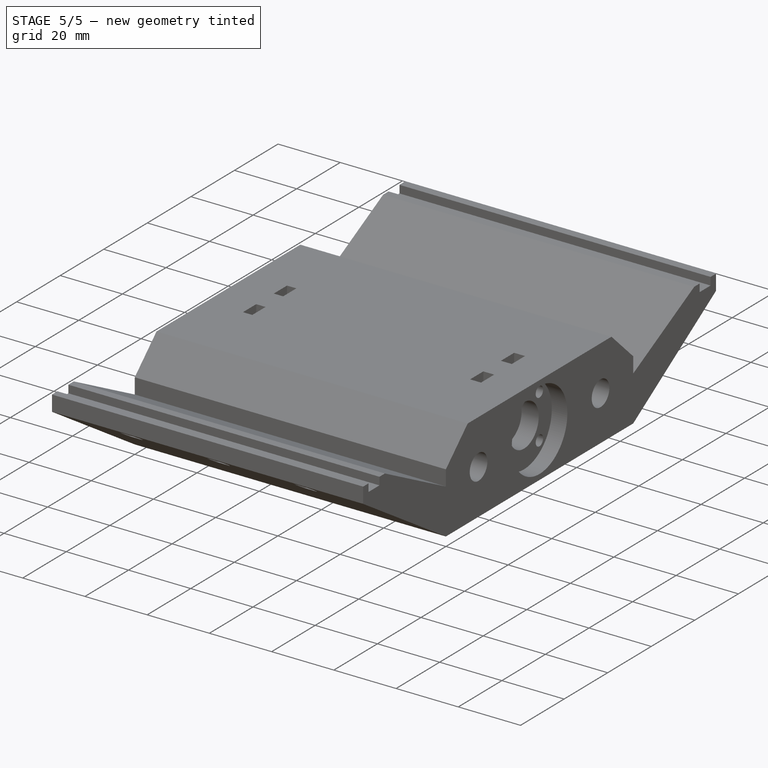
[diagram: stage 5 of 5 — iso view after this stage's code; geometry added in this stage tinted green]
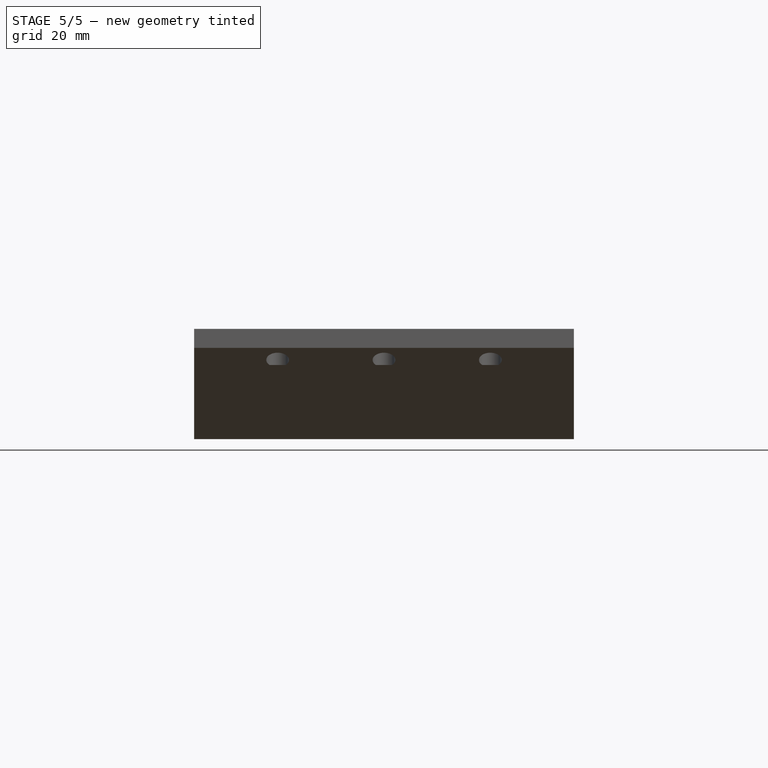
[diagram: stage 5 of 5 — front view after this stage's code; geometry added in this stage tinted green]
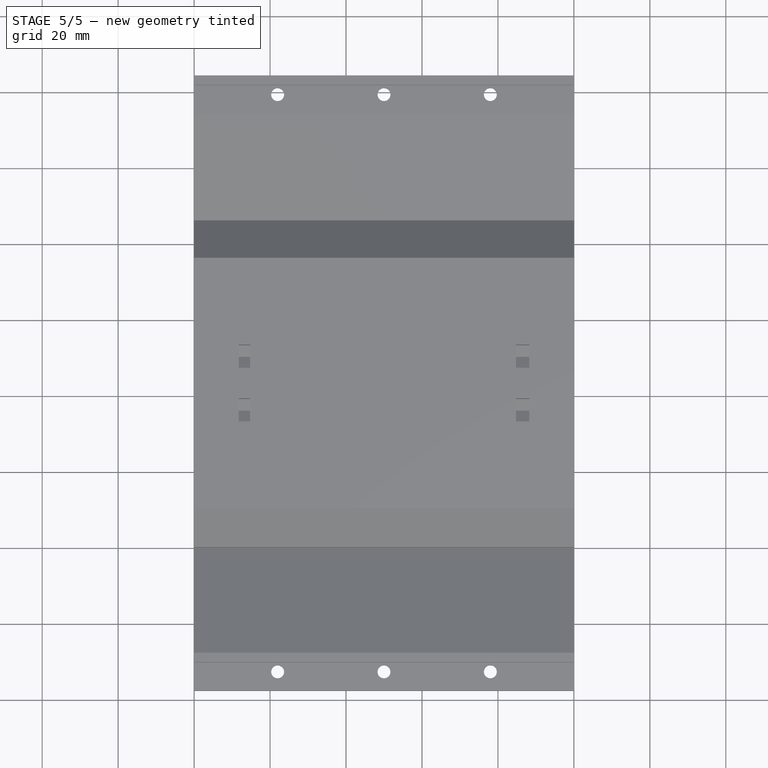
[diagram: stage 5 of 5 — top view after this stage's code; geometry added in this stage tinted green]
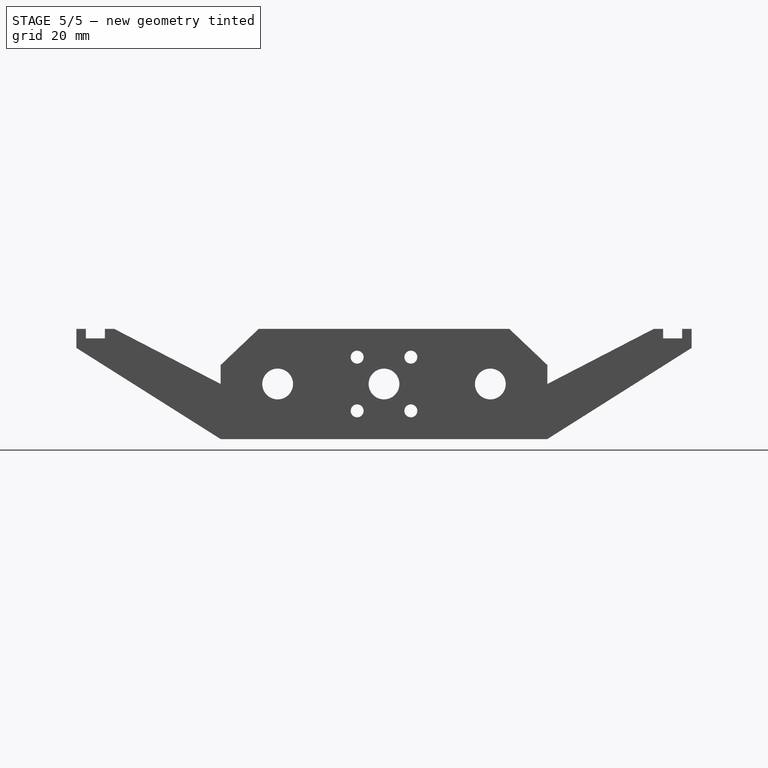
[diagram: stage 5 of 5 — right view after this stage's code; geometry added in this stage tinted green]
FEATURE [PartDesign::Body] Body  label="x-carriage-base"
  Group = -> [Sketch,Pad,Sketch001,Pocket,Sketch002,Pocket001,Sketch003,Pocket002,Sketch004,Pocket003,Sketch005,Pocket004,Sketch006,Pocket005,Sketch007,Pocket006,Sketch008,Pocket007,Sketch009,Pocket008,Sketch017,Pocket011,Sketch019,Pocket013,Sketch026,Pocket022]
  Origin = -> Origin
  Placement = pos=(140,0,0) rot=(0,0,1;0rad)
  Tip = -> Pocket022
FEATURE [PartDesign::FeatureBase] Clone
  BaseFeature = -> Body
  Placement = pos=(140,0,0) rot=(0,0,1;0rad)
FEATURE [PartDesign::Pocket] Pocket019
  BaseFeature = -> Clone
  Length = 5
  Length2 = 100
  Placement = pos=(140,0,0) rot=(0,0,1;0rad)
  Profile = -> Sketch024
  Reversed = true
  Type = 1
FEATURE [PartDesign::Pocket] Pocket020
  BaseFeature = -> Clone001
  Length = 0
  Length2 = 100
  Placement = pos=(140,0,0) rot=(0,0,1;0rad)
  Profile = -> Sketch025
  Reversed = true
  Type = 1
FEATURE [PartDesign::Body] Body002  label="x-carriage-top"
  BaseFeature = -> Body
  Group = -> [Clone001,Sketch025,Pocket020]
  Origin = -> Origin002
  Tip = -> Pocket020
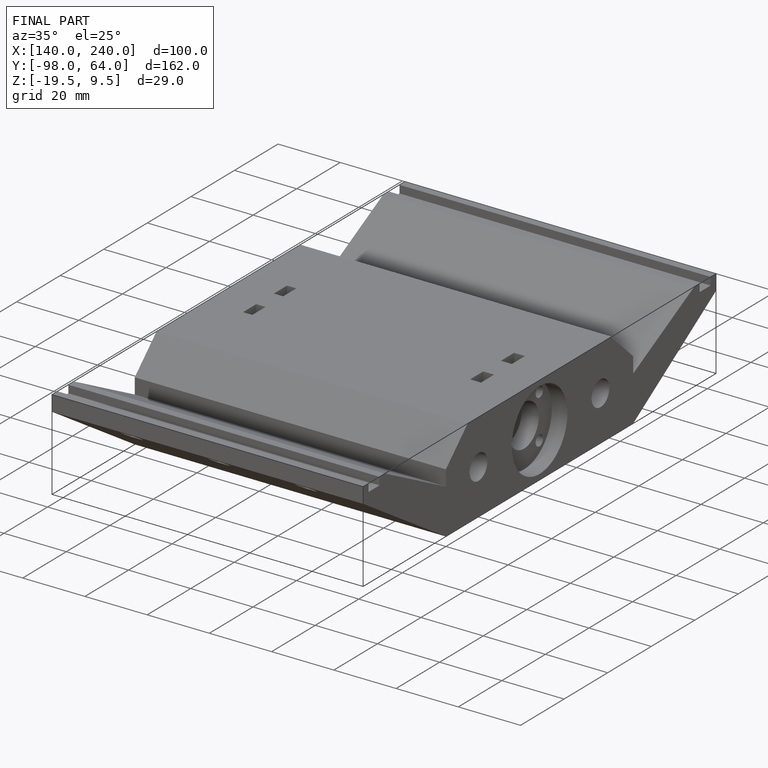
[diagram: finished part — iso view with bounding-box wireframe]
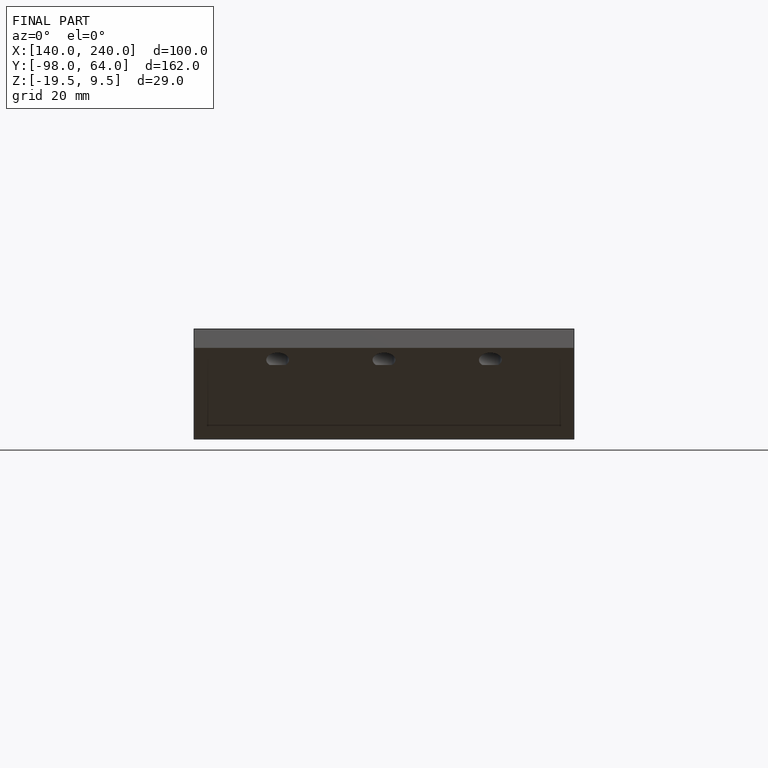
[diagram: finished part — front view with bounding-box wireframe]
